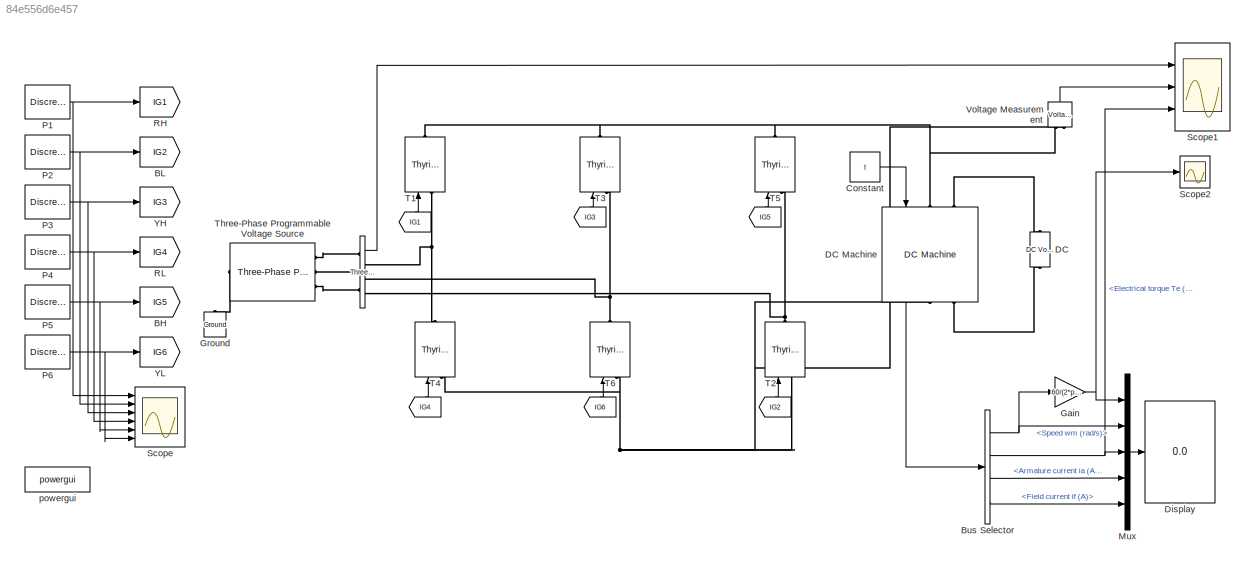
MODEL slx_84e556d6e457
KIND model
CONFIG AbsTol = auto
CONFIG EnableMultiTasking = off
CONFIG FixedStep = auto
CONFIG InitFcn = v=300\na=0\nb=60\nc=120\nd=180\ne=240\ng=300\n\nf=50\np=50\npe=0.02\nt=5
CONFIG MaxStep = 1e-4
CONFIG MinStep = auto
CONFIG RelTol = 1e-3
CONFIG SampleTimeConstraint = Unconstrained
CONFIG SolverName = VariableStepAuto
CONFIG StartTime = 0.0
CONFIG StopTime = 1
BLOCK [From]  
  GotoTag = IG1
  NameLocation = right
BLOCK [From]   
  GotoTag = IG4
  NameLocation = right
BLOCK [From]    
  GotoTag = IG3
  NameLocation = right
BLOCK [From]     
  GotoTag = IG6
  NameLocation = right
BLOCK [From]      
  GotoTag = IG5
  NameLocation = right
BLOCK [From]       
  GotoTag = IG2
  NameLocation = right
BLOCK [Reference]            REF=spsThreePhaseVIMeasurementLib/Three-Phase
V-I Measurement
  Ports = [0, 1, 0, 0, 0, 3, 3]
  SourceBlock = spsThreePhaseVIMeasurementLib/Three-Phase\nV-I Measurement
  SourceProductBaseCode = PS
  SourceType = Three-Phase VI Measurement
BLOCK [Goto] BH
  GotoTag = IG5
BLOCK [Goto] BL
  GotoTag = IG2
BLOCK [BusSelector] Bus Selector
  OutputSignals = Speed wm (rad/s),Electrical torque Te (n m),Armature current ia (A),Field current if (A)
  Ports = [1, 4]
BLOCK [Constant] Constant
  Value = t
BLOCK [Reference] DC   REF=spsDCVoltageSourceLib/DC Voltage Source
  NameLocation = left
  Ports = [0, 0, 0, 0, 0, 1, 1]
  SourceBlock = spsDCVoltageSourceLib/DC Voltage Source
  SourceProductBaseCode = PS
  SourceType = DC Voltage Source
BLOCK [Reference] DC Machine  REF=spsDCMachineLib/DC Machine
  NameLocation = left
  Ports = [1, 1, 0, 0, 0, 2, 2]
  SourceBlock = spsDCMachineLib/DC Machine
  SourceProductBaseCode = PS
  SourceType = DC machine
BLOCK [Display] Display
  Decimation = 1
  Ports = [1]
BLOCK [Gain] Gain
  Gain = 60/(2*pi)
BLOCK [Reference] Ground  REF=spsGroundLib/Ground
  NameLocation = right
  Ports = [0, 0, 0, 0, 0, 1]
  SourceBlock = spsGroundLib/Ground
  SourceProductBaseCode = PS
  SourceType = Ground
BLOCK [Mux] Mux
  DisplayOption = bar
  Inputs = 5
  Ports = [5, 1]
BLOCK [DiscretePulseGenerator] P1
  Period = 1/f
  PhaseDelay = ((pe*a)/360)
  Ports = [0, 1]
  PulseType = Time based
  PulseWidth = p
BLOCK [DiscretePulseGenerator] P2
  Period = 1/f
  PhaseDelay = ((pe*b)/360)
  Ports = [0, 1]
  PulseType = Time based
  PulseWidth = p
BLOCK [DiscretePulseGenerator] P3
  Period = 1/f
  PhaseDelay = ((pe*c)/360)
  Ports = [0, 1]
  PulseType = Time based
  PulseWidth = p
BLOCK [DiscretePulseGenerator] P4
  Period = 1/f
  PhaseDelay = ((pe*d)/360)
  Ports = [0, 1]
  PulseType = Time based
  PulseWidth = p
BLOCK [DiscretePulseGenerator] P5
  Period = 1/f
  PhaseDelay = ((pe*e)/360)
  Ports = [0, 1]
  PulseType = Time based
  PulseWidth = p
BLOCK [DiscretePulseGenerator] P6
  Period = 1/f
  PhaseDelay = ((pe*g)/360)
  Ports = [0, 1]
  PulseType = Time based
  PulseWidth = p
BLOCK [Goto] RH
  GotoTag = IG1
BLOCK [Goto] RL
  GotoTag = IG4
BLOCK [Scope] Scope
  Floating = off
  NumInputPorts = 6
  Ports = [6]
  ScopeSpecificationString = Simulink.scopes.TimeScopeBlockCfg('CurrentConfiguration', extmgr.ConfigurationSet(extmgr.Configuration('Core','General UI',true),extmgr.Configuration('Core','Source UI',true),extmgr.Configuration('Sources','WiredSimulink',true,'DataLogging',true,'DataLoggingSaveFormat','StructureWithTime','DataLoggingDecimation','1','DataLoggingDecimateData',true,'DataLoggingVariableName','ScopeData1'),extmgr.Conf...<+4986ch>
BLOCK [Scope] Scope1
  Floating = off
  NumInputPorts = 3
  Ports = [3]
  ScopeSpecificationString = Simulink.scopes.TimeScopeBlockCfg('CurrentConfiguration', extmgr.ConfigurationSet(extmgr.Configuration('Core','General UI',true,'FigureColor',[1 1 1]),extmgr.Configuration('Core','Source UI',true),extmgr.Configuration('Sources','WiredSimulink',true,'DataLogging',true,'DataLoggingSaveFormat','StructureWithTime','DataLoggingDecimation','1','DataLoggingDecimateData',true),extmgr.Configuration('Visual...<+5743ch>
BLOCK [Scope] Scope2
  Floating = off
  NumInputPorts = 1
  Ports = [1]
  ScopeSpecificationString = Simulink.scopes.TimeScopeBlockCfg('CurrentConfiguration', extmgr.ConfigurationSet(extmgr.Configuration('Core','General UI',true,'FigureColor',[1 1 1]),extmgr.Configuration('Core','Source UI',true),extmgr.Configuration('Sources','WiredSimulink',true,'DataLoggingVariableName','ScopeData1'),extmgr.Configuration('Visuals','Time Domain',true,'SerializedDisplays',{struct('MinYLimReal','-287.07254','MaxY...<+1700ch>
BLOCK [Reference] T1  REF=spsThyristorLib/Thyristor
  NameLocation = right
  Ports = [1, 0, 0, 0, 0, 1, 1]
  SourceBlock = spsThyristorLib/Thyristor
  SourceProductBaseCode = PS
  SourceType = Thyristor
BLOCK [Reference] T2  REF=spsThyristorLib/Thyristor
  NameLocation = right
  Ports = [1, 0, 0, 0, 0, 1, 1]
  SourceBlock = spsThyristorLib/Thyristor
  SourceProductBaseCode = PS
  SourceType = Thyristor
BLOCK [Reference] T3  REF=spsThyristorLib/Thyristor
  NameLocation = left
  Ports = [1, 0, 0, 0, 0, 1, 1]
  SourceBlock = spsThyristorLib/Thyristor
  SourceProductBaseCode = PS
  SourceType = Thyristor
BLOCK [Reference] T4  REF=spsThyristorLib/Thyristor
  NameLocation = left
  Ports = [1, 0, 0, 0, 0, 1, 1]
  SourceBlock = spsThyristorLib/Thyristor
  SourceProductBaseCode = PS
  SourceType = Thyristor
BLOCK [Reference] T5  REF=spsThyristorLib/Thyristor
  NameLocation = left
  Ports = [1, 0, 0, 0, 0, 1, 1]
  SourceBlock = spsThyristorLib/Thyristor
  SourceProductBaseCode = PS
  SourceType = Thyristor
BLOCK [Reference] T6  REF=spsThyristorLib/Thyristor
  NameLocation = left
  Ports = [1, 0, 0, 0, 0, 1, 1]
  SourceBlock = spsThyristorLib/Thyristor
  SourceProductBaseCode = PS
  SourceType = Thyristor
BLOCK [Reference] Three-Phase Programmable Voltage Source  REF=spsThreePhaseProgrammableVoltageSourceLib/Three-Phase
Programmable
Voltage Source
  Ports = [0, 0, 0, 0, 0, 1, 3]
  SourceBlock = spsThreePhaseProgrammableVoltageSourceLib/Three-Phase\nProgrammable\nVoltage Source
  SourceProductBaseCode = PS
  SourceType = Three-Phase Programmable Voltage Source
BLOCK [Reference] Voltage Measurement  REF=spsVoltageMeasurementLib/Voltage Measurement
  NameLocation = left
  Ports = [0, 1, 0, 0, 0, 2]
  SourceBlock = spsVoltageMeasurementLib/Voltage Measurement
  SourceProductBaseCode = PS
  SourceType = Voltage Measurement
BLOCK [Goto] YH
  GotoTag = IG3
BLOCK [Goto] YL
  GotoTag = IG6
BLOCK [Reference] powergui  REF=spspowerguiLib/powergui
  Ports = []
  Priority = 1
  SourceBlock = spspowerguiLib/powergui
  SourceProductBaseCode = PS
  SourceType = PSB option menu block
LINE          :1 -> Scope1:1
LINE       :1 -> T2:1
LINE      :1 -> T5:1
LINE     :1 -> T6:1
LINE    :1 -> T3:1
LINE   :1 -> T4:1
LINE  :1 -> T1:1
NET Bus Selector:1 -> Gain:1, Mux:2
NET Bus Selector:2 -> Mux:3, Scope1:3
LINE Bus Selector:3 -> Mux:4
LINE Bus Selector:4 -> Mux:5
LINE Constant:1 -> DC Machine:1
LINE DC Machine:1 -> Bus Selector:1
NET Gain:1 -> Mux:1, Scope2:1
LINE Mux:1 -> Display:1
NET P1:1 -> RH:1, Scope:1
NET P2:1 -> BL:1, Scope:2
NET P3:1 -> Scope:3, YH:1
NET P4:1 -> RL:1, Scope:4
NET P5:1 -> BH:1, Scope:5
NET P6:1 -> Scope:6, YL:1
LINE Voltage Measurement:1 -> Scope1:2
PLINE          :LConn1 -- Three-Phase Programmable Voltage Source:RConn1
PLINE          :LConn2 -- Three-Phase Programmable Voltage Source:RConn2
PLINE          :LConn3 -- Three-Phase Programmable Voltage Source:RConn3
PNET net1:          :RConn1 -- T1:LConn1 -- T4:RConn1
PNET net2:          :RConn2 -- T3:LConn1 -- T6:RConn1
PNET net3:          :RConn3 -- T2:RConn1 -- T5:LConn1
PLINE DC :LConn1 -- DC Machine:RConn2
PLINE DC :RConn1 -- DC Machine:LConn2
PNET net4: DC Machine:LConn1 -- T1:RConn1 -- T3:RConn1 -- T5:RConn1 -- Voltage Measurement:LConn1
PNET net5: DC Machine:RConn1 -- T2:LConn1 -- T4:LConn1 -- T6:LConn1 -- Voltage Measurement:LConn2
PLINE Ground:LConn1 -- Three-Phase Programmable Voltage Source:LConn1
note: NET lines group one-source signal fan-out (src -> all destinations, sorted); 1:1 wires keep LINE; PNET lines group multi-terminal physical nets as a canonical sorted terminal list (undirected conserving connections); 2-terminal nets keep the pairwise PLINE form
